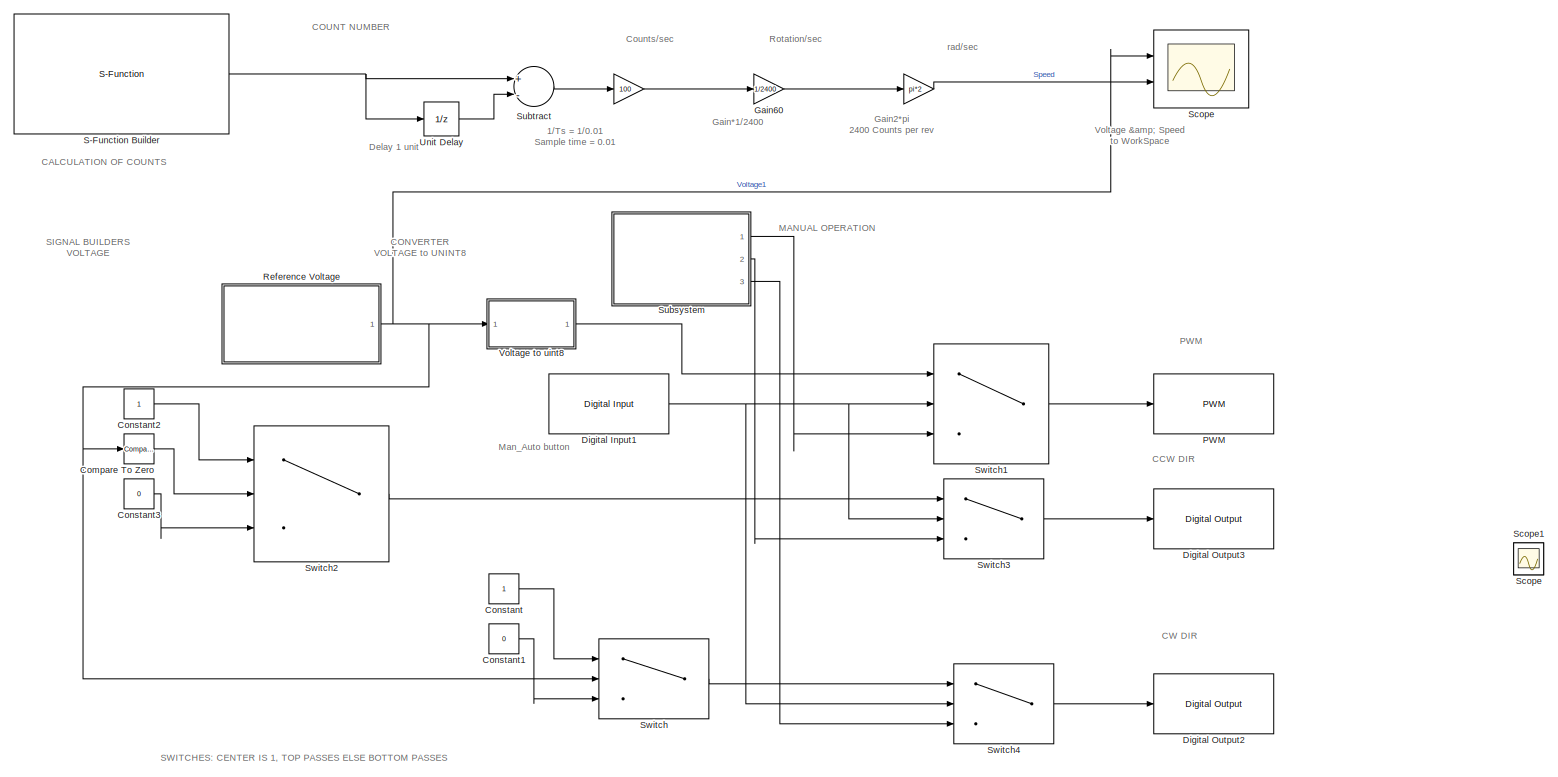
[diagram: root canvas - part 1/1, most of the canvas]
MODEL slx_6acc70143677
KIND model
CONFIG AbsTol = auto
CONFIG EnableMultiTasking = on
CONFIG FixedStep = auto
CONFIG MaxStep = auto
CONFIG MinStep = auto
CONFIG RelTol = 1e-3
CONFIG SampleTimeConstraint = Unconstrained
CONFIG Solver = FixedStepAuto
CONFIG SolverName = FixedStepAuto
CONFIG StartTime = 0.0
CONFIG StopTime = 20
BLOCK [Gain]  
  Gain = pi*2
  OutDataTypeStr = double
  ParamDataTypeStr = Inherit: Inherit via internal rule
  SaturateOnIntegerOverflow = off
BLOCK [Reference] Compare To Zero  REF=simulink/Logic and Bit
Operations/Compare
To Zero
  Ports = [1, 1]
  SourceBlock = simulink/Logic and Bit\nOperations/Compare\nTo Zero
  SourceProductBaseCode = SL
  SourceProductName = Simulink
  SourceType = Compare To Zero
BLOCK [Constant] Constant
BLOCK [Constant] Constant1
  Value = 0
BLOCK [Constant] Constant2
BLOCK [Constant] Constant3
  Value = 0
BLOCK [Reference] Digital Input1  REF=arduinolib/Digital Input
  Ports = [0, 1]
  SourceBlock = arduinolib/Digital Input
  SourceProductBaseCode = ARDUINO
  SourceProductName = Simulink Support Package for Arduino Hardware
  SourceType = Arduino Digital Input
BLOCK [Reference] Digital Output2  REF=arduinolib/Digital Output
  Ports = [1]
  SourceBlock = arduinolib/Digital Output
  SourceProductBaseCode = ARDUINO
  SourceProductName = Simulink Support Package for Arduino Hardware
  SourceType = Arduino Digital Output
BLOCK [Reference] Digital Output3  REF=arduinolib/Digital Output
  Ports = [1]
  SourceBlock = arduinolib/Digital Output
  SourceProductBaseCode = ARDUINO
  SourceProductName = Simulink Support Package for Arduino Hardware
  SourceType = Arduino Digital Output
BLOCK [Gain] Gain60
  Gain = 1/2400
  OutDataTypeStr = double
  ParamDataTypeStr = Inherit: Inherit via internal rule
  SaturateOnIntegerOverflow = off
BLOCK [Reference] PWM  REF=arduinolib/PWM
  Ports = [1]
  SourceBlock = arduinolib/PWM
  SourceProductBaseCode = ARDUINO
  SourceProductName = Simulink Support Package for Arduino Hardware
  SourceType = Arduino PWM
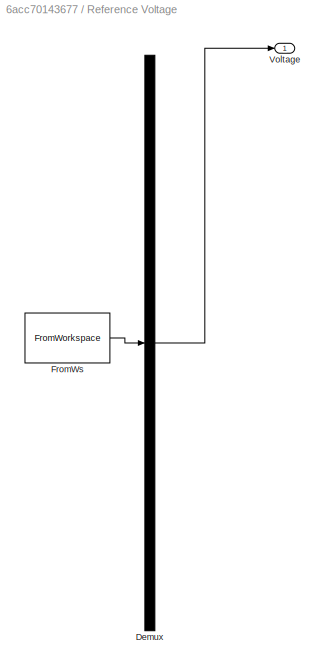
BLOCK [SubSystem] Reference Voltage
  ClipboardFcn = sigbuilder_block('clipboard');
  CloseFcn = sigbuilder_block('close');
  ContinueFcn = sigbuilder_block('continue')
  CopyFcn = sigbuilder_block('copy');
  DeleteFcn = sigbuilder_block('delete');
  LoadFcn = sigbuilder_block('load');
  MaskHideContents = on
  ModelCloseFcn = sigbuilder_block('modelClose');
  NameChangeFcn = sigbuilder_block('namechange');
  OpenFcn = sigbuilder_block('open',[105 207 438 216 ]);
  PauseFcn = sigbuilder_block('pause')
  Ports = [0, 1]
  PreSaveFcn = sigbuilder_block('preSave');
  RequestExecContextInheritance = off
  StartFcn = sigbuilder_block('start');
  StopFcn = sigbuilder_block('stop');
  Tag = STV Subsys
BLOCK [Demux] Reference Voltage/Demux
  Outputs = 1
  Ports = [1, 1]
  Tag = STV Demux
BLOCK [FromWorkspace] Reference Voltage/FromWs
  OutputAfterFinalValue = Setting to zero
  SampleTime = 1/100
  Tag = STV FromWs
  VariableName = tuvar
  ZeroCross = on
BLOCK [Outport] Reference Voltage/Voltage
  IconDisplay = Port number
  Tag = STV Outport
BLOCK [S-Function] S-Function Builder
  CopyFcn = set_param(gcbh,'LinkStatus','none')
  EnableBusSupport = off
  FunctionName = sfcn_encoder2019
  OpenFcn = sfunctionwizard(gcbh)
  Parameters = uint8(0),uint8(2),uint8(3)
  Ports = [0, 1]
  PreSaveFcn = try, set_param(gcb,'FunctionName','sfcn_encoder2019'), end
  SFcnIsStateOwnerBlock = off
  SFunctionDeploymentMode = off
  SFunctionModules = sfcn_encoder2019_wrapper
BLOCK [Scope] Scope
  Floating = off
  IOType = viewer
  NumInputPorts = 1
  Ports = []
  ScopeSpecificationString = Simulink.scopes.TimeScopeBlockCfg('CurrentConfiguration', extmgr.ConfigurationSet(extmgr.Configuration('Core','General UI',true),extmgr.Configuration('Core','Source UI',true),extmgr.Configuration('Sources','WiredSimulink',true,'DataLoggingDecimateData',true),extmgr.Configuration('Visuals','Time Domain',true,'SerializedDisplays',{struct('MinYLimReal','-650.625','MaxYLimReal','680.625','YLabelReal',...<+1422ch>
BLOCK [Scope] Scope 
  Floating = off
  NumInputPorts = 2
  Ports = [2]
  ScopeSpecificationString = Simulink.scopes.TimeScopeBlockCfg('CurrentConfiguration', extmgr.ConfigurationSet(extmgr.Configuration('Core','General UI',true),extmgr.Configuration('Core','Source UI',true),extmgr.Configuration('Sources','WiredSimulink',true,'DataLogging',true,'DataLoggingSaveFormat','StructureWithTime'),extmgr.Configuration('Visuals','Time Domain',true,'SerializedDisplays',{struct('MinYLimReal','-86.07011','Max...<+1496ch>
BLOCK [Scope] Scope1
  Floating = off
  IOType = viewer
  NumInputPorts = 1
  Ports = []
  ScopeSpecificationString = Simulink.scopes.TimeScopeBlockCfg('CurrentConfiguration', extmgr.ConfigurationSet(extmgr.Configuration('Core','General UI',true),extmgr.Configuration('Core','Source UI',true),extmgr.Configuration('Sources','WiredSimulink',true,'DataLoggingVariableName','ScopeData1'),extmgr.Configuration('Visuals','Time Domain',true,'SerializedDisplays',{struct('MinYLimReal','-15.00000','MaxYLimReal','15.00000','YL...<+1365ch>
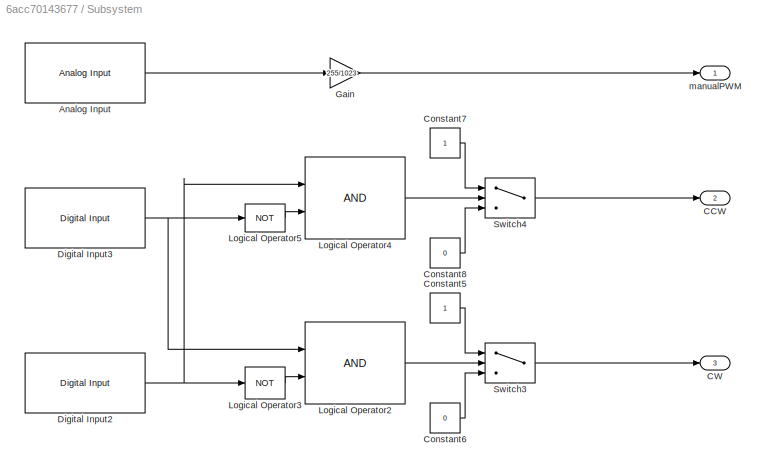
BLOCK [SubSystem] Subsystem
  Ports = [0, 3]
  RequestExecContextInheritance = off
BLOCK [Reference] Subsystem/Analog Input  REF=arduinolib/Analog Input
  Ports = [0, 1]
  SourceBlock = arduinolib/Analog Input
  SourceProductBaseCode = ARDUINO
  SourceProductName = Simulink Support Package for Arduino Hardware
  SourceType = Arduino Analog Input
BLOCK [Outport] Subsystem/CCW
  IconDisplay = Port number
  Port = 2
BLOCK [Outport] Subsystem/CW
  IconDisplay = Port number
  Port = 3
BLOCK [Constant] Subsystem/Constant5
BLOCK [Constant] Subsystem/Constant6
  Value = 0
BLOCK [Constant] Subsystem/Constant7
BLOCK [Constant] Subsystem/Constant8
  Value = 0
BLOCK [Reference] Subsystem/Digital Input2  REF=arduinolib/Digital Input
  Ports = [0, 1]
  SourceBlock = arduinolib/Digital Input
  SourceProductBaseCode = ARDUINO
  SourceProductName = Simulink Support Package for Arduino Hardware
  SourceType = Arduino Digital Input
BLOCK [Reference] Subsystem/Digital Input3  REF=arduinolib/Digital Input
  Ports = [0, 1]
  SourceBlock = arduinolib/Digital Input
  SourceProductBaseCode = ARDUINO
  SourceProductName = Simulink Support Package for Arduino Hardware
  SourceType = Arduino Digital Input
BLOCK [Gain] Subsystem/Gain
  Gain = 255/1023
  OutDataTypeStr = Inherit: Inherit via internal rule
  ParamDataTypeStr = Inherit: Inherit via internal rule
  SaturateOnIntegerOverflow = off
BLOCK [Logic] Subsystem/Logical Operator2
  AllPortsSameDT = off
  OutDataTypeStr = boolean
  Ports = [2, 1]
BLOCK [Logic] Subsystem/Logical Operator3
  AllPortsSameDT = off
  Operator = NOT
  OutDataTypeStr = boolean
  Ports = [1, 1]
BLOCK [Logic] Subsystem/Logical Operator4
  AllPortsSameDT = off
  OutDataTypeStr = boolean
  Ports = [2, 1]
BLOCK [Logic] Subsystem/Logical Operator5
  AllPortsSameDT = off
  Operator = NOT
  OutDataTypeStr = boolean
  Ports = [1, 1]
BLOCK [Switch] Subsystem/Switch3
  Criteria = u2 > Threshold
  InputSameDT = off
  SaturateOnIntegerOverflow = off
BLOCK [Switch] Subsystem/Switch4
  Criteria = u2 > Threshold
  InputSameDT = off
  SaturateOnIntegerOverflow = off
BLOCK [Outport] Subsystem/manualPWM
  IconDisplay = Port number
BLOCK [Sum] Subtract
  InputSameDT = off
  Inputs = +-
  OutDataTypeStr = Inherit: Inherit via internal rule
  Ports = [2, 1]
  SaturateOnIntegerOverflow = off
BLOCK [Switch] Switch
  Criteria = u2 > Threshold
  InputSameDT = off
  SaturateOnIntegerOverflow = off
BLOCK [Switch] Switch1
  Criteria = u2 > Threshold
  InputSameDT = off
  SaturateOnIntegerOverflow = off
BLOCK [Switch] Switch2
  Criteria = u2 > Threshold
  InputSameDT = off
  SaturateOnIntegerOverflow = off
BLOCK [Switch] Switch3
  Criteria = u2 > Threshold
  InputSameDT = off
  SaturateOnIntegerOverflow = off
BLOCK [Switch] Switch4
  Criteria = u2 > Threshold
  InputSameDT = off
  SaturateOnIntegerOverflow = off
BLOCK [UnitDelay] Unit Delay
  HasFrameUpgradeWarning = on
  SampleTime = -1
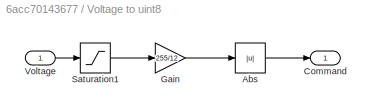
BLOCK [SubSystem] Voltage to uint8
  Ports = [1, 1]
  RequestExecContextInheritance = off
BLOCK [Abs] Voltage to uint8/Abs
  OutDataTypeStr = uint8
  SaturateOnIntegerOverflow = off
BLOCK [Outport] Voltage to uint8/Command
  IconDisplay = Port number
BLOCK [Gain] Voltage to uint8/Gain
  Gain = 255/12
  OutDataTypeStr = single
  ParamDataTypeStr = Inherit: Inherit via internal rule
  SaturateOnIntegerOverflow = off
BLOCK [Saturate] Voltage to uint8/Saturation1
  InputPortMap = u0
  LowerLimit = -12
  Ports = [1, 1]
  UpperLimit = 12
BLOCK [Inport] Voltage to uint8/Voltage
  IconDisplay = Port number
ANNOTATION (root): 1/Ts = 1/0.01 Sample time = 0.01
ANNOTATION (root): CALCULATION OF COUNTS
ANNOTATION (root): CCW DIR
ANNOTATION (root): CONVERTER VOLTAGE to UNINT8
ANNOTATION (root): COUNT NUMBER
ANNOTATION (root): CW DIR
ANNOTATION (root): Counts/sec
ANNOTATION (root): Delay 1 unit
ANNOTATION (root): Gain*1/2400
ANNOTATION (root): Gain2*pi 2400 Counts per rev
ANNOTATION (root): Man_Auto button
ANNOTATION (root): PWM
ANNOTATION (root): Rotation/sec
ANNOTATION (root): SIGNAL BUILDERS VOLTAGE
ANNOTATION (root): SWITCHES: CENTER IS 1, TOP PASSES ELSE BOTTOM PASSES
ANNOTATION (root): Voltage & Speed to WorkSpace
ANNOTATION (root): rad/sec
ANNOTATION (root): MANUAL OPERATION
NET  :1 -> Gain60:1, Scope :2
LINE Compare To Zero:1 -> Switch2:2
LINE Constant1:1 -> Switch:3
LINE Constant2:1 -> Switch2:1
LINE Constant3:1 -> Switch2:3
LINE Constant:1 -> Switch:1
NET Digital Input1:1 -> Switch1:2, Switch3:2, Switch4:2
LINE Gain60:1 ->  :1
NET Reference Voltage:1 -> Compare To Zero:1, Scope :1, Switch:2, Voltage to uint8:1
NET S-Function Builder:1 -> Subtract:1, Unit Delay:1
LINE Subsystem/Analog Input:1 -> Subsystem/Gain:1
LINE Subsystem/Constant5:1 -> Subsystem/Switch3:1
LINE Subsystem/Constant6:1 -> Subsystem/Switch3:3
LINE Subsystem/Constant7:1 -> Subsystem/Switch4:1
LINE Subsystem/Constant8:1 -> Subsystem/Switch4:3
NET Subsystem/Digital Input2:1 -> Subsystem/Logical Operator3:1, Subsystem/Logical Operator4:1
NET Subsystem/Digital Input3:1 -> Subsystem/Logical Operator2:1, Subsystem/Logical Operator5:1
LINE Subsystem/Gain:1 -> Subsystem/manualPWM:1
LINE Subsystem/Logical Operator2:1 -> Subsystem/Switch3:2
LINE Subsystem/Logical Operator3:1 -> Subsystem/Logical Operator2:2
LINE Subsystem/Logical Operator4:1 -> Subsystem/Switch4:2
LINE Subsystem/Logical Operator5:1 -> Subsystem/Logical Operator4:2
LINE Subsystem/Switch3:1 -> Subsystem/CW:1
LINE Subsystem/Switch4:1 -> Subsystem/CCW:1
LINE Subsystem:1 -> Switch1:3
LINE Subsystem:2 -> Switch3:3
LINE Subsystem:3 -> Switch4:3
LINE Subtract:1 ->  :1
LINE Switch1:1 -> PWM:1
LINE Switch2:1 -> Switch3:1
LINE Switch3:1 -> Digital Output3:1
LINE Switch4:1 -> Digital Output2:1
LINE Switch:1 -> Switch4:1
LINE Unit Delay:1 -> Subtract:2
LINE Voltage to uint8/Abs:1 -> Voltage to uint8/Command:1
LINE Voltage to uint8/Gain:1 -> Voltage to uint8/Abs:1
LINE Voltage to uint8/Saturation1:1 -> Voltage to uint8/Gain:1
LINE Voltage to uint8/Voltage:1 -> Voltage to uint8/Saturation1:1
LINE Voltage to uint8:1 -> Switch1:1
note: NET lines group one-source signal fan-out (src -> all destinations, sorted); 1:1 wires keep LINE
